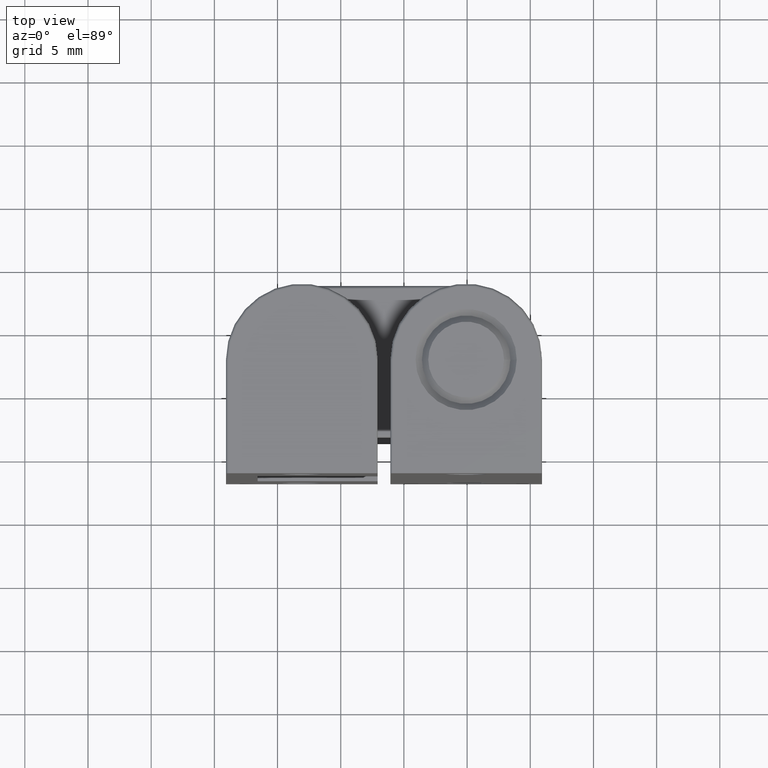
[diagram: clean part render]
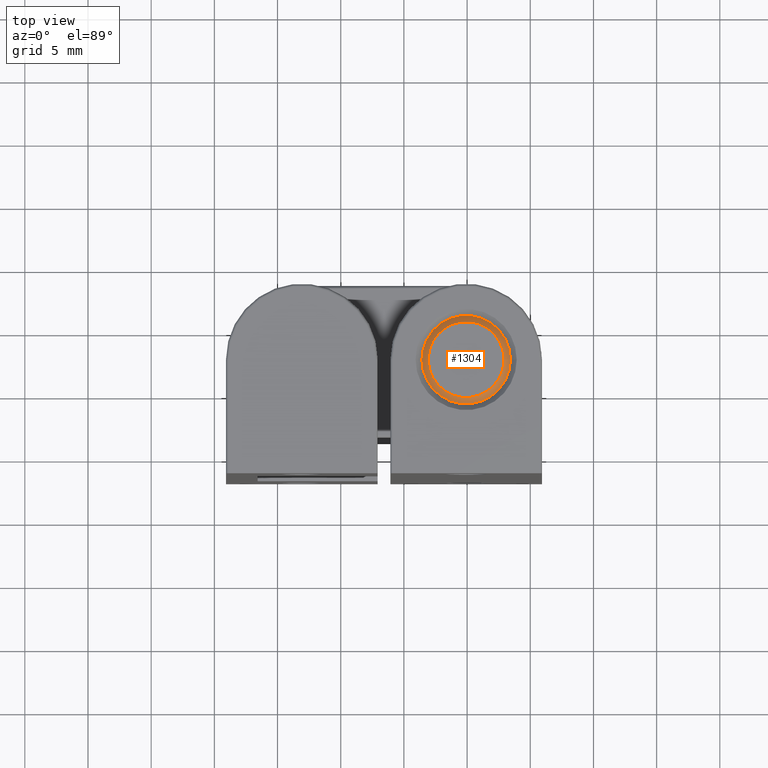
[diagram: same view with one face highlighted and labeled with its STEP entity id]
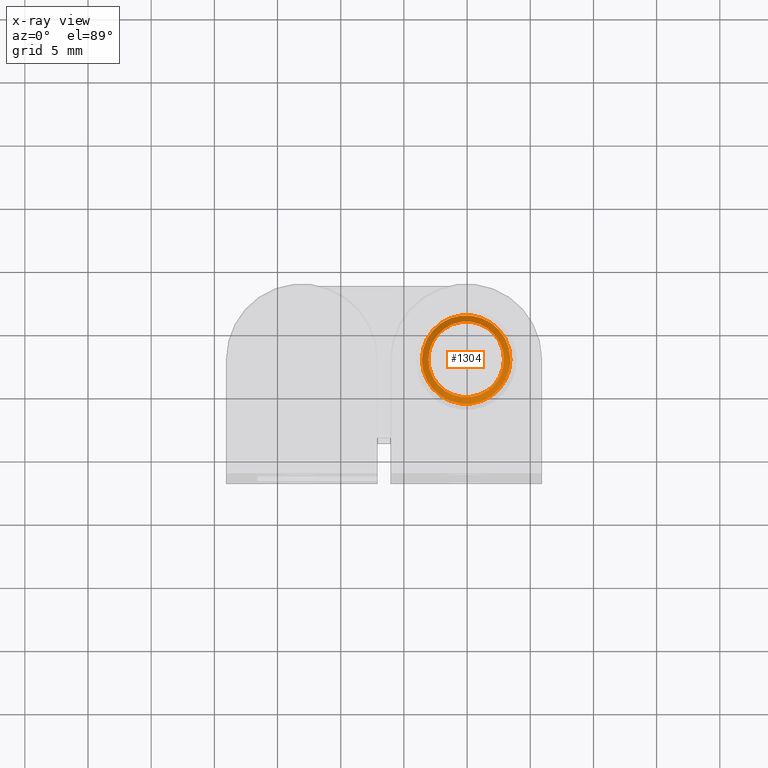
[diagram: x-ray of the same camera — body ghosted, the highlighted face saturated]
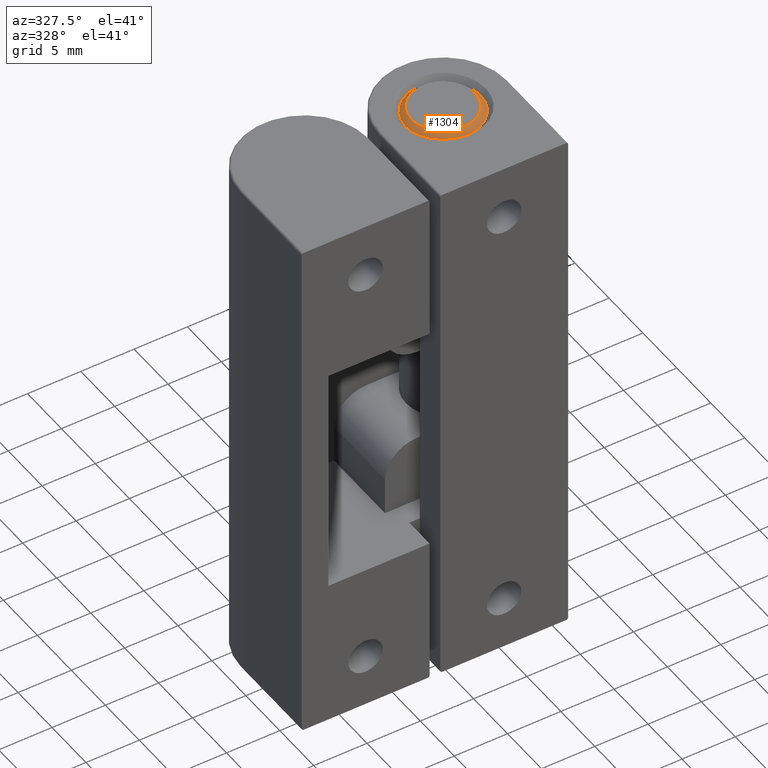
[diagram: same view with one face highlighted and labeled with its STEP entity id]
A machine part, top view. The second image highlights one B-rep face of the part: STEP entity #1304.
The next image is the same camera in x-ray: the body ghosted, the highlighted face saturated — about 0% of this face is hidden behind the body in this view.
A second angle (auxiliary view) of the same face is appended — the face is thin or edge-on in the first view.
In plain terms, the highlighted conical surface has half-angle 45 deg.
Its self-contained STEP definition (entity closure, byte-faithful):
#40=CONICAL_SURFACE('',#1457,3.25,45.);
#77=FACE_BOUND('',#285,.T.);
#184=FACE_OUTER_BOUND('',#284,.T.);
#284=EDGE_LOOP('',(#1197));
#285=EDGE_LOOP('',(#1198));
#555=CIRCLE('',#1455,3.5);
#556=CIRCLE('',#1458,3.);
#673=VERTEX_POINT('',#2310);
#674=VERTEX_POINT('',#2314);
#848=EDGE_CURVE('',#673,#673,#555,.T.);
#849=EDGE_CURVE('',#674,#674,#556,.T.);
#1197=ORIENTED_EDGE('',*,*,#849,.T.);
#1198=ORIENTED_EDGE('',*,*,#848,.T.);
#1304=ADVANCED_FACE('',(#184,#77),#40,.T.);
#1455=AXIS2_PLACEMENT_3D('',#2311,#1855,#1856);
#1457=AXIS2_PLACEMENT_3D('',#2313,#1859,#1860);
#1458=AXIS2_PLACEMENT_3D('',#2315,#1861,#1862);
#1855=DIRECTION('center_axis',(0.,0.,1.));
#1856=DIRECTION('ref_axis',(-1.,0.,0.));
#1859=DIRECTION('center_axis',(0.,0.,-1.));
#1860=DIRECTION('ref_axis',(-1.,0.,0.));
#1861=DIRECTION('center_axis',(0.,0.,-1.));
#1862=DIRECTION('ref_axis',(-1.,0.,0.));
#2310=CARTESIAN_POINT('',(1.49999999999983,-2.00000000000019,-0.5));
#2311=CARTESIAN_POINT('Origin',(-2.00000000000017,-2.00000000000019,-0.5));
#2313=CARTESIAN_POINT('Origin',(-2.00000000000017,-2.00000000000019,-0.25));
#2314=CARTESIAN_POINT('',(0.999999999999832,-2.00000000000019,0.));
#2315=CARTESIAN_POINT('Origin',(-2.00000000000017,-2.00000000000019,0.));